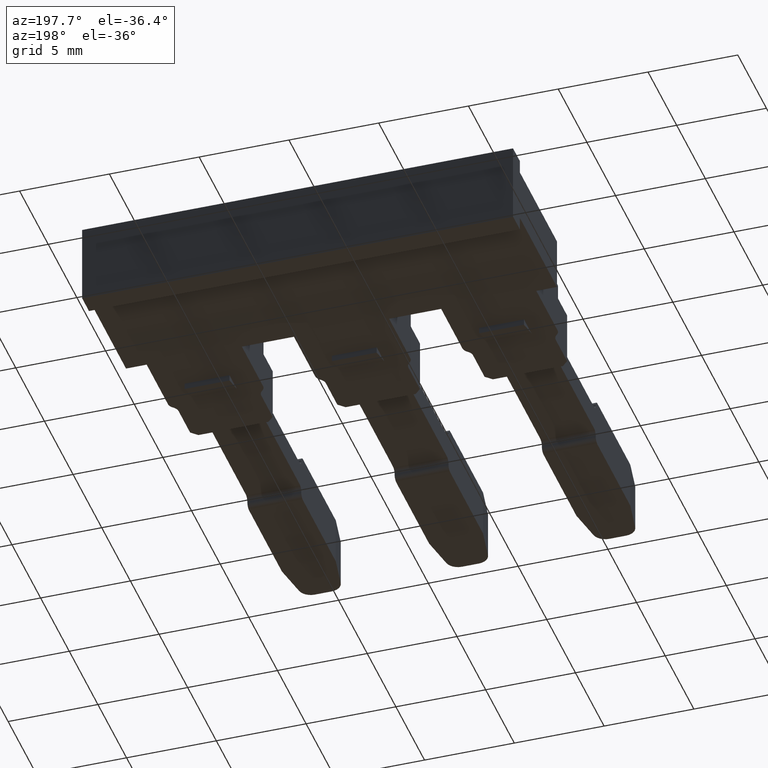
[diagram: clean part render]
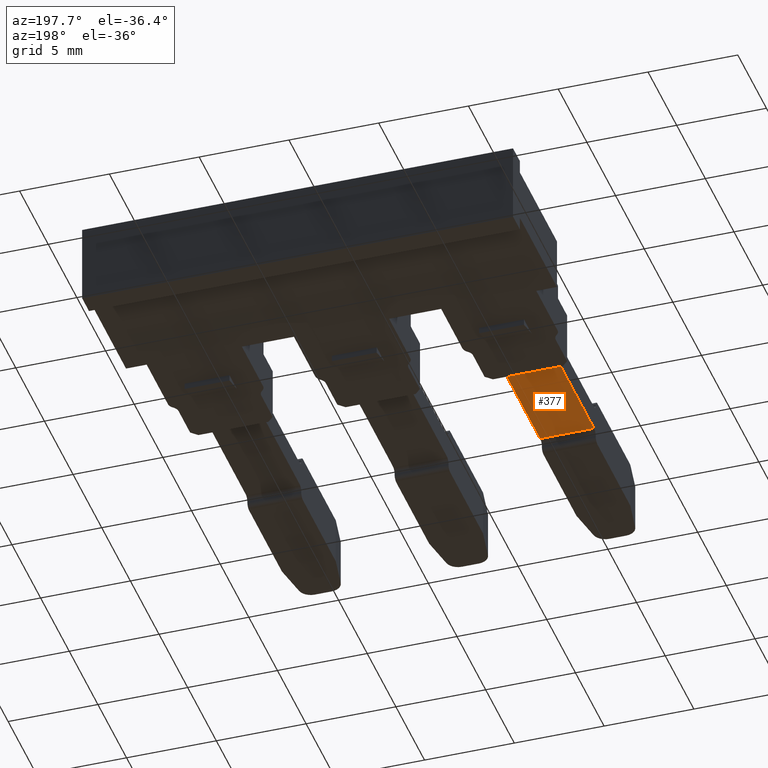
[diagram: same view with one face highlighted and labeled with its STEP entity id]
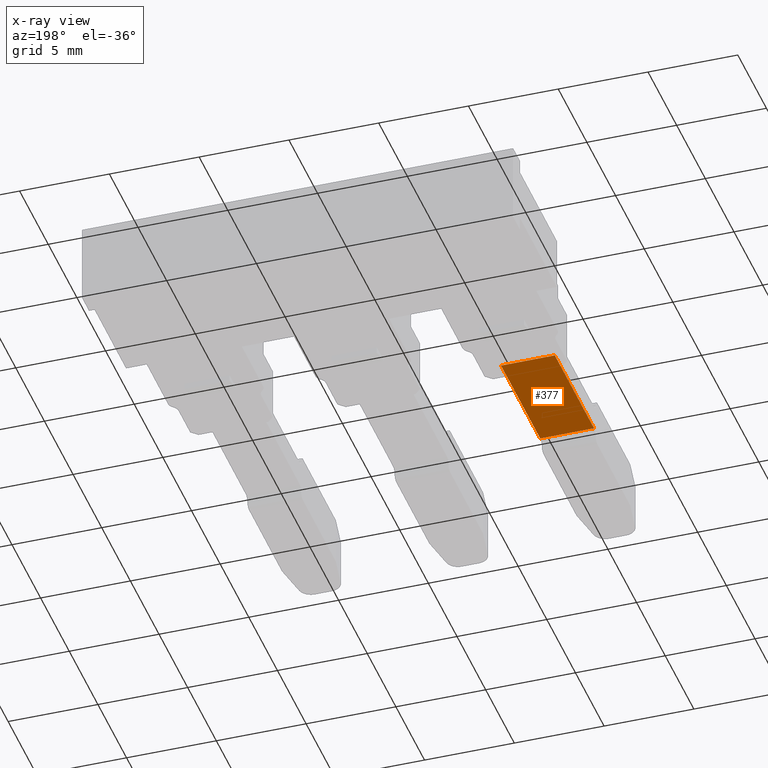
[diagram: x-ray of the same camera — body ghosted, the highlighted face saturated]
A machine part, auxiliary view. The second image highlights one B-rep face of the part: STEP entity #377.
The next image is the same camera in x-ray: the body ghosted, the highlighted face saturated — about 0% of this face is hidden behind the body in this view.
In plain terms, the highlighted planar face has unit normal (-0, -0, 1).
Its self-contained STEP definition (entity closure, byte-faithful):
#135 = EDGE_CURVE ( 'NONE', #571, #582, #1078, .T. ) ;
#153 = EDGE_CURVE ( 'NONE', #596, #571, #1091, .T. ) ;
#186 = EDGE_CURVE ( 'NONE', #557, #596, #1210, .T. ) ;
#197 = EDGE_CURVE ( 'NONE', #557, #582, #1233, .T. ) ;
#377 = ADVANCED_FACE ( 'NONE', ( #3412 ), #3403, .F. ) ;
#557 = VERTEX_POINT ( 'NONE', #2898 ) ;
#571 = VERTEX_POINT ( 'NONE', #2919 ) ;
#582 = VERTEX_POINT ( 'NONE', #2935 ) ;
#596 = VERTEX_POINT ( 'NONE', #2925 ) ;
#1043 = CARTESIAN_POINT ( 'NONE',  ( 1133.294493372181700, 641.3475629657206100, 0.8000061035155142700 ) ) ;
#1058 = DIRECTION ( 'NONE',  ( 1.259368144656452000E-037, -1.000000000000000000, -2.347622273454535600E-024 ) ) ;
#1078 = LINE ( 'NONE', #1043, #3729 ) ;
#1091 = LINE ( 'NONE', #1093, #3696 ) ;
#1093 = CARTESIAN_POINT ( 'NONE',  ( 1150.034848447493000, 659.6092820011524500, 0.8000061035156759100 ) ) ;
#1102 = DIRECTION ( 'NONE',  ( -1.000000000000000000, -1.259332280444392000E-037, -2.956436511251547900E-061 ) ) ;
#1206 = DIRECTION ( 'NONE',  ( -1.259368144656452000E-037, 1.000000000000000000, 2.347622273454535600E-024 ) ) ;
#1210 = LINE ( 'NONE', #1216, #3772 ) ;
#1216 = CARTESIAN_POINT ( 'NONE',  ( 1136.294499627732400, 641.3475629657206100, 0.8000061035156751400 ) ) ;
#1230 = DIRECTION ( 'NONE',  ( -0.9999999999311652800, 1.173325886225305500E-005, -5.364441114782054900E-014 ) ) ;
#1233 = LINE ( 'NONE', #1248, #3781 ) ;
#1248 = CARTESIAN_POINT ( 'NONE',  ( 1133.294497282768600, 652.7700208247688400, 0.8000061035155142700 ) ) ;
#1873 = ORIENTED_EDGE ( 'NONE', *, *, #186, .F. ) ;
#1875 = ORIENTED_EDGE ( 'NONE', *, *, #153, .F. ) ;
#1922 = ORIENTED_EDGE ( 'NONE', *, *, #197, .T. ) ;
#1946 = ORIENTED_EDGE ( 'NONE', *, *, #135, .F. ) ;
#2376 = EDGE_LOOP ( 'NONE', ( #1873, #1922, #1946, #1875 ) ) ;
#2898 = CARTESIAN_POINT ( 'NONE',  ( 1136.294499627732400, 652.7699856249647600, 0.8000061035156751400 ) ) ;
#2919 = CARTESIAN_POINT ( 'NONE',  ( 1133.294493308298800, 659.6092820011524500, 0.8000061035155680000 ) ) ;
#2925 = CARTESIAN_POINT ( 'NONE',  ( 1136.294496906175000, 659.6092820011524500, 0.8000061035156755800 ) ) ;
#2935 = CARTESIAN_POINT ( 'NONE',  ( 1133.294493372181700, 652.7700208248147600, 0.8000061035155142700 ) ) ;
#3403 = PLANE ( 'NONE',  #3975 ) ;
#3410 = DIRECTION ( 'NONE',  ( -5.364441115151317600E-014, -2.347622273454535600E-024, 1.000000000000000000 ) ) ;
#3411 = DIRECTION ( 'NONE',  ( 1.000000000000000000, 0.0000000000000000000, 5.364441115151317600E-014 ) ) ;
#3412 = FACE_OUTER_BOUND ( 'NONE', #2376, .T. ) ;
#3426 = CARTESIAN_POINT ( 'NONE',  ( 1137.294489309877700, 641.3475629657206100, 0.8000061035157287600 ) ) ;
#3696 = VECTOR ( 'NONE', #1102, 1000.000000000000000 ) ;
#3729 = VECTOR ( 'NONE', #1058, 1000.000000000000000 ) ;
#3772 = VECTOR ( 'NONE', #1206, 1000.000000000000000 ) ;
#3781 = VECTOR ( 'NONE', #1230, 1000.000000000000100 ) ;
#3975 = AXIS2_PLACEMENT_3D ( 'NONE', #3426, #3410, #3411 ) ;